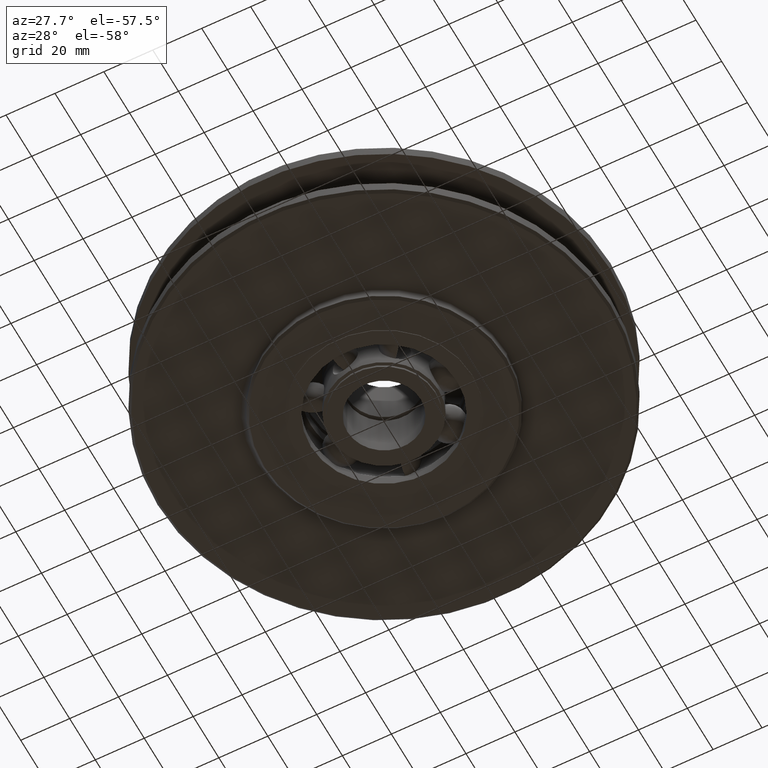
[diagram: clean part render]
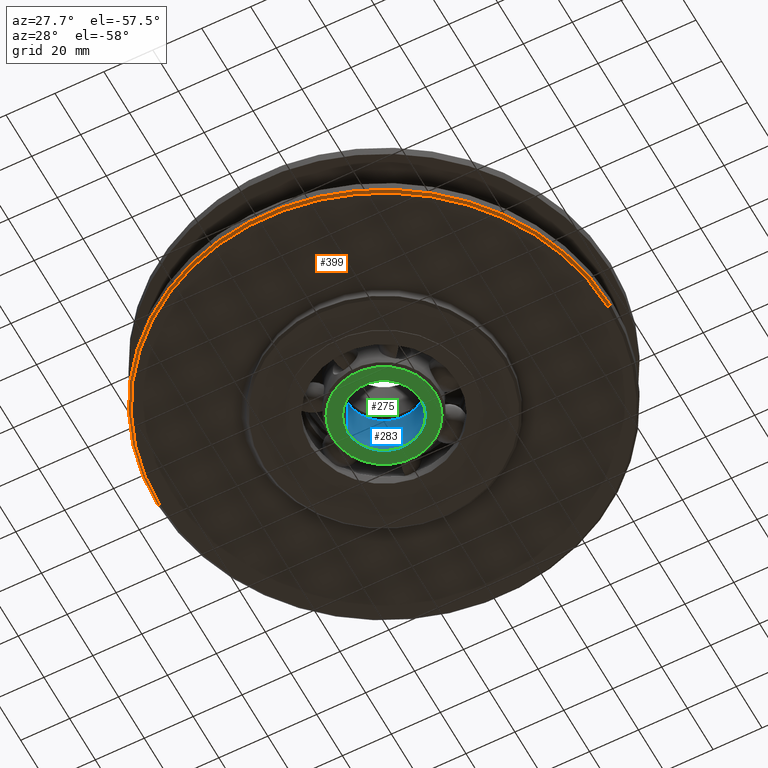
[diagram: same view with three faces highlighted in distinct colors, each labeled with its STEP entity id]
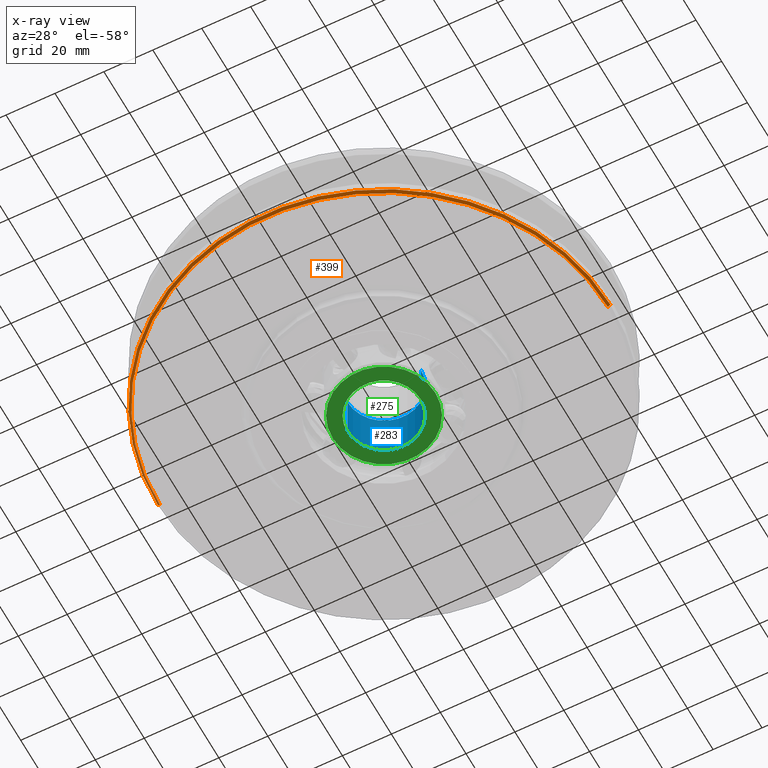
[diagram: x-ray of the same camera — body ghosted, the three highlighted faces saturated]
A machine part, auxiliary view with three faces highlighted in distinct colors.
The next image is the same camera in x-ray (body ghosted, the three faces saturated) — at least one of them is partly hidden behind the body in this view.
Their STEP definitions:

[orange] entity #399 — the highlighted conical surface has half-angle 45 deg.
#399=ADVANCED_FACE('',(#822),#823,.T.);
#822=FACE_OUTER_BOUND('',#1240,.T.);
#823=CONICAL_SURFACE('',#1241,92.0,0.785398163397448);
#1240=EDGE_LOOP('',(#2521,#2522,#2523,#2524));
#1241=AXIS2_PLACEMENT_3D('',#2525,#2526,#2527);
#2521=ORIENTED_EDGE('',*,*,#2665,.T.);
#2522=ORIENTED_EDGE('',*,*,#3079,.F.);
#2523=ORIENTED_EDGE('',*,*,#2667,.T.);
#2524=ORIENTED_EDGE('',*,*,#3077,.T.);
#2525=CARTESIAN_POINT('',(0.0,0.0,-14.5));
#2526=DIRECTION('',(-0.0,-0.0,1.0));
#2527=DIRECTION('',(1.0,0.0,0.0));
#2665=EDGE_CURVE('',#3262,#3256,#3263,.T.);
#2667=EDGE_CURVE('',#3258,#3264,#3266,.T.);
#3077=EDGE_CURVE('',#3264,#3262,#3868,.T.);
#3079=EDGE_CURVE('',#3258,#3256,#3870,.T.);
#3256=VERTEX_POINT('',#5115);
#3258=VERTEX_POINT('',#5118);
#3262=VERTEX_POINT('',#5123);
#3263=LINE('',#5124,#5125);
#3264=VERTEX_POINT('',#5126);
#3266=LINE('',#5128,#5129);
#3868=CIRCLE('',#8501,91.5);
#3870=CIRCLE('',#8503,92.5);
#5115=CARTESIAN_POINT('',(92.5,0.0,-14.0));
#5118=CARTESIAN_POINT('',(-92.5,1.1327982892113E-014,-14.0));
#5123=CARTESIAN_POINT('',(91.5,0.0,-15.0));
#5124=CARTESIAN_POINT('',(92.0,-1.12667505521556E-014,-14.5));
#5125=VECTOR('',#8657,1.0);
#5126=CARTESIAN_POINT('',(-91.5,1.12055182121983E-014,-15.0));
#5128=CARTESIAN_POINT('',(-92.0,1.12667505521556E-014,-14.5));
#5129=VECTOR('',#8661,1.0);
#8501=AXIS2_PLACEMENT_3D('',#9131,#9132,#9133);
#8503=AXIS2_PLACEMENT_3D('',#9134,#9135,#9136);
#8657=DIRECTION('',(0.707106781186548,-8.65956056235493E-017,0.707106781186548));
#8661=DIRECTION('',(0.707106781186548,-8.65956056235493E-017,-0.707106781186548));
#9131=CARTESIAN_POINT('',(0.0,0.0,-15.0));
#9132=DIRECTION('',(0.0,0.0,1.0));
#9133=DIRECTION('',(1.0,0.0,0.0));
#9134=CARTESIAN_POINT('',(0.0,0.0,-14.0));
#9135=DIRECTION('',(0.0,0.0,1.0));
#9136=DIRECTION('',(1.0,0.0,0.0));

[blue] entity #283 — the highlighted cylindrical surface (partial cylindrical patch) has radius 15 mm, axis along (0, 0, -1).
#283=ADVANCED_FACE('',(#630),#631,.F.);
#630=FACE_OUTER_BOUND('',#1048,.T.);
#631=CYLINDRICAL_SURFACE('',#1049,15.0);
#1048=EDGE_LOOP('',(#1909,#1910,#1911,#1912));
#1049=AXIS2_PLACEMENT_3D('',#1913,#1914,#1915);
#1909=ORIENTED_EDGE('',*,*,#2910,.T.);
#1910=ORIENTED_EDGE('',*,*,#2943,.F.);
#1911=ORIENTED_EDGE('',*,*,#2912,.T.);
#1912=ORIENTED_EDGE('',*,*,#2933,.F.);
#1913=CARTESIAN_POINT('',(0.0,0.0,-10.75));
#1914=DIRECTION('',(0.0,0.0,-1.0));
#1915=DIRECTION('',(1.0,0.0,0.0));
#2910=EDGE_CURVE('',#3669,#3670,#3671,.T.);
#2912=EDGE_CURVE('',#3674,#3672,#3675,.T.);
#2933=EDGE_CURVE('',#3669,#3672,#3708,.T.);
#2943=EDGE_CURVE('',#3674,#3670,#3718,.T.);
#3669=VERTEX_POINT('',#7282);
#3670=VERTEX_POINT('',#7283);
#3671=LINE('',#7284,#7285);
#3672=VERTEX_POINT('',#7286);
#3674=VERTEX_POINT('',#7288);
#3675=LINE('',#7289,#7290);
#3708=CIRCLE('',#7329,15.0);
#3718=CIRCLE('',#7339,15.0);
#7282=CARTESIAN_POINT('',(15.0,0.0,-21.25));
#7283=CARTESIAN_POINT('',(15.0,0.0,-1.25));
#7284=CARTESIAN_POINT('',(15.0,1.83697019872103E-015,-10.75));
#7285=VECTOR('',#8982,1.0);
#7286=CARTESIAN_POINT('',(-15.0,-1.83697019872103E-015,-21.25));
#7288=CARTESIAN_POINT('',(-15.0,-1.83697019872103E-015,-1.25));
#7289=CARTESIAN_POINT('',(-15.0,-1.83697019872103E-015,-10.75));
#7290=VECTOR('',#8986,1.0);
#7329=AXIS2_PLACEMENT_3D('',#9020,#9021,#9022);
#7339=AXIS2_PLACEMENT_3D('',#9038,#9039,#9040);
#8982=DIRECTION('',(-0.0,-0.0,1.0));
#8986=DIRECTION('',(-0.0,-0.0,-1.0));
#9020=CARTESIAN_POINT('',(0.0,0.0,-21.25));
#9021=DIRECTION('',(0.0,-0.0,1.0));
#9022=DIRECTION('',(1.0,0.0,0.0));
#9038=CARTESIAN_POINT('',(0.0,0.0,-1.25));
#9039=DIRECTION('',(0.0,0.0,-1.0));
#9040=DIRECTION('',(1.0,0.0,0.0));

[green] entity #275 — the highlighted planar face has unit normal (0, 0, -1).
#275=ADVANCED_FACE('',(#616,#617),#618,.T.);
#616=FACE_BOUND('',#1034,.T.);
#617=FACE_OUTER_BOUND('',#1035,.T.);
#618=PLANE('',#1036);
#1034=EDGE_LOOP('',(#1877,#1878));
#1035=EDGE_LOOP('',(#1879,#1880));
#1036=AXIS2_PLACEMENT_3D('',#1881,#1882,#1883);
#1877=ORIENTED_EDGE('',*,*,#2933,.T.);
#1878=ORIENTED_EDGE('',*,*,#2911,.T.);
#1879=ORIENTED_EDGE('',*,*,#2931,.T.);
#1880=ORIENTED_EDGE('',*,*,#2926,.T.);
#1881=CARTESIAN_POINT('',(0.0,0.0,-21.25));
#1882=DIRECTION('',(0.0,0.0,-1.0));
#1883=DIRECTION('',(-1.0,0.0,0.0));
#2911=EDGE_CURVE('',#3672,#3669,#3673,.T.);
#2926=EDGE_CURVE('',#3699,#3696,#3700,.T.);
#2931=EDGE_CURVE('',#3696,#3699,#3706,.T.);
#2933=EDGE_CURVE('',#3669,#3672,#3708,.T.);
#3669=VERTEX_POINT('',#7282);
#3672=VERTEX_POINT('',#7286);
#3673=CIRCLE('',#7287,15.0);
#3696=VERTEX_POINT('',#7315);
#3699=VERTEX_POINT('',#7319);
#3700=CIRCLE('',#7320,21.0);
#3706=CIRCLE('',#7327,21.0);
#3708=CIRCLE('',#7329,15.0);
#7282=CARTESIAN_POINT('',(15.0,0.0,-21.25));
#7286=CARTESIAN_POINT('',(-15.0,-1.83697019872103E-015,-21.25));
#7287=AXIS2_PLACEMENT_3D('',#8983,#8984,#8985);
#7315=CARTESIAN_POINT('',(21.0,0.0,-21.25));
#7319=CARTESIAN_POINT('',(-21.0,2.57175827820944E-015,-21.25));
#7320=AXIS2_PLACEMENT_3D('',#9007,#9008,#9009);
#7327=AXIS2_PLACEMENT_3D('',#9017,#9018,#9019);
#7329=AXIS2_PLACEMENT_3D('',#9020,#9021,#9022);
#8983=CARTESIAN_POINT('',(0.0,0.0,-21.25));
#8984=DIRECTION('',(0.0,-0.0,1.0));
#8985=DIRECTION('',(1.0,0.0,0.0));
#9007=CARTESIAN_POINT('',(0.0,0.0,-21.25));
#9008=DIRECTION('',(0.0,0.0,-1.0));
#9009=DIRECTION('',(1.0,0.0,0.0));
#9017=CARTESIAN_POINT('',(0.0,0.0,-21.25));
#9018=DIRECTION('',(0.0,0.0,-1.0));
#9019=DIRECTION('',(1.0,0.0,0.0));
#9020=CARTESIAN_POINT('',(0.0,0.0,-21.25));
#9021=DIRECTION('',(0.0,-0.0,1.0));
#9022=DIRECTION('',(1.0,0.0,0.0));